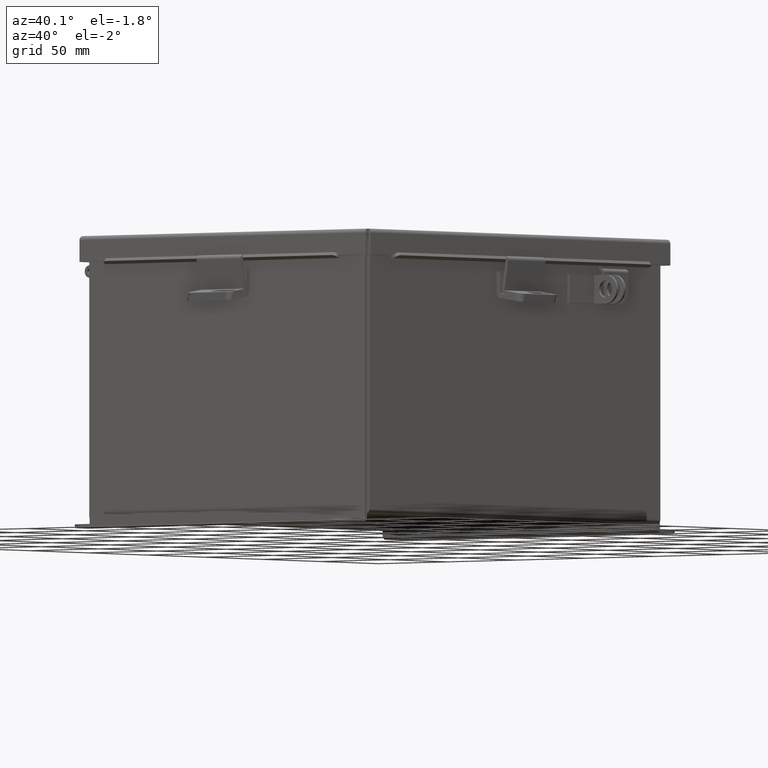
[diagram: clean part render]
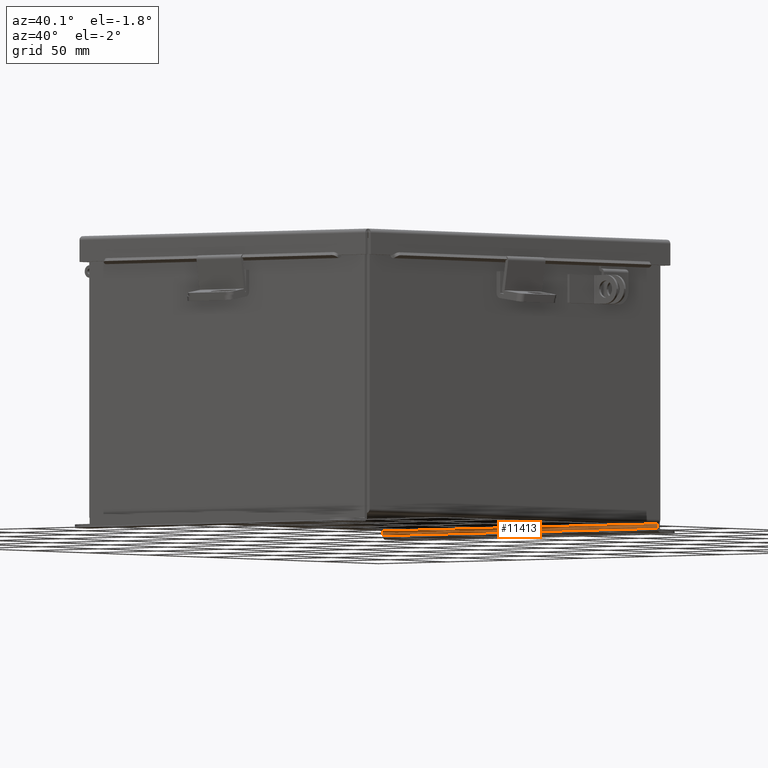
[diagram: same view with one face highlighted and labeled with its STEP entity id]
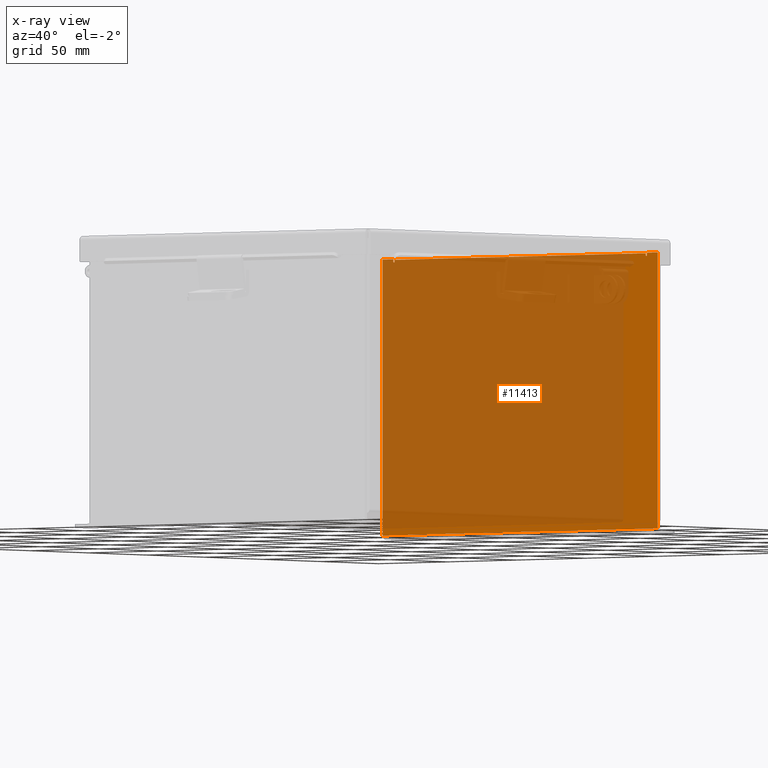
[diagram: x-ray of the same camera — body ghosted, the highlighted face saturated]
A machine part, auxiliary view. The second image highlights one B-rep face of the part: STEP entity #11413.
The next image is the same camera in x-ray: the body ghosted, the highlighted face saturated — about 86% of this face is hidden behind the body in this view.
In plain terms, the highlighted planar face has unit normal (0, -1, 0).
Its self-contained STEP definition (entity closure, byte-faithful):
#110 = LINE ( 'NONE', #7000, #9880 ) ;
#189 = EDGE_LOOP ( 'NONE', ( #14093, #1163, #10749, #2391, #8594, #6799, #3560, #2560, #8576, #13699, #16339, #2752 ) ) ;
#374 = CARTESIAN_POINT ( 'NONE',  ( -3.619649999999999600, -0.07470000000000015500, 2.874949999999999200 ) ) ;
#917 = CARTESIAN_POINT ( 'NONE',  ( 3.582299999999999600, -0.07470000000000015500, 2.874949999999999200 ) ) ;
#943 = LINE ( 'NONE', #1521, #3932 ) ;
#1163 = ORIENTED_EDGE ( 'NONE', *, *, #9681, .F. ) ;
#1172 = DIRECTION ( 'NONE',  ( 1.000000000000000000, 0.0000000000000000000, 0.0000000000000000000 ) ) ;
#1257 = VERTEX_POINT ( 'NONE', #9922 ) ;
#1333 = VECTOR ( 'NONE', #2147, 39.37007874015748100 ) ;
#1521 = CARTESIAN_POINT ( 'NONE',  ( -3.582299999999999600, -0.07469999999999907300, 2.874949999999999200 ) ) ;
#1917 = DIRECTION ( 'NONE',  ( 1.000000000000000000, 0.0000000000000000000, 0.0000000000000000000 ) ) ;
#2147 = DIRECTION ( 'NONE',  ( -0.0000000000000000000, -0.0000000000000000000, 1.000000000000000000 ) ) ;
#2391 = ORIENTED_EDGE ( 'NONE', *, *, #3533, .F. ) ;
#2560 = ORIENTED_EDGE ( 'NONE', *, *, #15768, .F. ) ;
#2678 = DIRECTION ( 'NONE',  ( 0.0000000000000000000, -1.000000000000000000, 0.0000000000000000000 ) ) ;
#2752 = ORIENTED_EDGE ( 'NONE', *, *, #11463, .F. ) ;
#2829 = LINE ( 'NONE', #15691, #12561 ) ;
#3034 = CARTESIAN_POINT ( 'NONE',  ( -3.925299999999999600, -0.07470000000000015500, 2.925299999999999600 ) ) ;
#3378 = EDGE_CURVE ( 'NONE', #15314, #7451, #10077, .T. ) ;
#3533 = EDGE_CURVE ( 'NONE', #14207, #12335, #4716, .T. ) ;
#3560 = ORIENTED_EDGE ( 'NONE', *, *, #3378, .F. ) ;
#3843 = CARTESIAN_POINT ( 'NONE',  ( -3.582299999999999600, -0.07470000000000015500, 2.912299999999999200 ) ) ;
#3932 = VECTOR ( 'NONE', #15465, 39.37007874015748100 ) ;
#4000 = VECTOR ( 'NONE', #12581, 39.37007874015748100 ) ;
#4245 = DIRECTION ( 'NONE',  ( 0.0000000000000000000, -1.000000000000000000, 0.0000000000000000000 ) ) ;
#4314 = VECTOR ( 'NONE', #1172, 39.37007874015748100 ) ;
#4688 = CARTESIAN_POINT ( 'NONE',  ( 3.925299999999999600, -0.07470000000000015500, 2.925299999999999600 ) ) ;
#4713 = LINE ( 'NONE', #10051, #4314 ) ;
#4716 = LINE ( 'NONE', #3034, #1333 ) ;
#4998 = CARTESIAN_POINT ( 'NONE',  ( 3.582299999999999600, -0.07469999999999907300, 2.912299999999999200 ) ) ;
#5047 = VERTEX_POINT ( 'NONE', #3843 ) ;
#5194 = PLANE ( 'NONE',  #15773 ) ;
#6334 = VECTOR ( 'NONE', #7125, 39.37007874015748100 ) ;
#6745 = CARTESIAN_POINT ( 'NONE',  ( 3.619649999999999600, -0.07469999999999907300, 2.874949999999999200 ) ) ;
#6799 = ORIENTED_EDGE ( 'NONE', *, *, #12473, .F. ) ;
#7000 = CARTESIAN_POINT ( 'NONE',  ( -3.925299999999999600, -0.07470000000000015500, 2.925299999999999600 ) ) ;
#7037 = EDGE_CURVE ( 'NONE', #14207, #16519, #2829, .T. ) ;
#7057 = VERTEX_POINT ( 'NONE', #12893 ) ;
#7058 = DIRECTION ( 'NONE',  ( 0.0000000000000000000, -1.000000000000000000, 0.0000000000000000000 ) ) ;
#7125 = DIRECTION ( 'NONE',  ( 0.0000000000000000000, 0.0000000000000000000, -1.000000000000000000 ) ) ;
#7214 = EDGE_CURVE ( 'NONE', #13310, #10336, #13962, .T. ) ;
#7405 = DIRECTION ( 'NONE',  ( 1.000000000000000000, 0.0000000000000000000, 0.0000000000000000000 ) ) ;
#7413 = LINE ( 'NONE', #4998, #4000 ) ;
#7423 = CARTESIAN_POINT ( 'NONE',  ( 3.582299999999999600, -0.07470000000000015500, 2.912299999999999200 ) ) ;
#7451 = VERTEX_POINT ( 'NONE', #4688 ) ;
#8574 = VERTEX_POINT ( 'NONE', #917 ) ;
#8576 = ORIENTED_EDGE ( 'NONE', *, *, #14602, .F. ) ;
#8594 = ORIENTED_EDGE ( 'NONE', *, *, #7037, .T. ) ;
#8712 = VECTOR ( 'NONE', #14340, 39.37007874015748100 ) ;
#8720 = CARTESIAN_POINT ( 'NONE',  ( -3.925299999999999600, -0.07470000000000015500, -3.099299999999999900 ) ) ;
#8724 = EDGE_CURVE ( 'NONE', #12999, #8574, #7413, .T. ) ;
#9092 = DIRECTION ( 'NONE',  ( 0.0000000000000000000, 1.186875369640613200E-014, -1.000000000000000000 ) ) ;
#9167 = CARTESIAN_POINT ( 'NONE',  ( -3.925299999999999600, -0.07470000000000015500, 2.925299999999999600 ) ) ;
#9681 = EDGE_CURVE ( 'NONE', #7057, #13310, #11515, .T. ) ;
#9795 = DIRECTION ( 'NONE',  ( 1.000000000000000000, -0.0000000000000000000, -0.0000000000000000000 ) ) ;
#9842 = AXIS2_PLACEMENT_3D ( 'NONE', #11836, #4245, #13141 ) ;
#9880 = VECTOR ( 'NONE', #1917, 39.37007874015748100 ) ;
#9922 = CARTESIAN_POINT ( 'NONE',  ( 3.619649999999999600, -0.07470000000000015500, 2.874949999999999200 ) ) ;
#9925 = CIRCLE ( 'NONE', #16234, 0.01867500000000003900 ) ;
#10051 = CARTESIAN_POINT ( 'NONE',  ( -3.582299999999999600, -0.07469999999999907300, 2.912299999999999200 ) ) ;
#10077 = LINE ( 'NONE', #9167, #13054 ) ;
#10283 = CARTESIAN_POINT ( 'NONE',  ( 0.0000000000000000000, -0.07470000000000015500, 0.0000000000000000000 ) ) ;
#10336 = VERTEX_POINT ( 'NONE', #10651 ) ;
#10651 = CARTESIAN_POINT ( 'NONE',  ( -3.582299999999999600, -0.07470000000000015500, 2.874949999999999200 ) ) ;
#10749 = ORIENTED_EDGE ( 'NONE', *, *, #16253, .F. ) ;
#11413 = ADVANCED_FACE ( 'NONE', ( #15262 ), #5194, .T. ) ;
#11463 = EDGE_CURVE ( 'NONE', #10336, #5047, #943, .T. ) ;
#11515 = LINE ( 'NONE', #14135, #14507 ) ;
#11559 = DIRECTION ( 'NONE',  ( 0.0000000000000000000, -0.0000000000000000000, -1.000000000000000000 ) ) ;
#11836 = CARTESIAN_POINT ( 'NONE',  ( -3.600974999999999600, -0.07469999999999907300, 2.874949999999999200 ) ) ;
#12335 = VERTEX_POINT ( 'NONE', #13216 ) ;
#12473 = EDGE_CURVE ( 'NONE', #7451, #16519, #16481, .T. ) ;
#12561 = VECTOR ( 'NONE', #9795, 39.37007874015748100 ) ;
#12581 = DIRECTION ( 'NONE',  ( 0.0000000000000000000, 0.0000000000000000000, -1.000000000000000000 ) ) ;
#12893 = CARTESIAN_POINT ( 'NONE',  ( -3.619649999999999600, -0.07470000000000015500, 2.925299999999999600 ) ) ;
#12999 = VERTEX_POINT ( 'NONE', #7423 ) ;
#13054 = VECTOR ( 'NONE', #7405, 39.37007874015748100 ) ;
#13078 = EDGE_CURVE ( 'NONE', #5047, #12999, #4713, .T. ) ;
#13141 = DIRECTION ( 'NONE',  ( 0.0000000000000000000, 0.0000000000000000000, -1.000000000000000000 ) ) ;
#13216 = CARTESIAN_POINT ( 'NONE',  ( -3.925299999999999600, -0.07470000000000015500, 2.925299999999999600 ) ) ;
#13310 = VERTEX_POINT ( 'NONE', #374 ) ;
#13699 = ORIENTED_EDGE ( 'NONE', *, *, #8724, .F. ) ;
#13962 = CIRCLE ( 'NONE', #9842, 0.01867500000000003900 ) ;
#14093 = ORIENTED_EDGE ( 'NONE', *, *, #7214, .F. ) ;
#14135 = CARTESIAN_POINT ( 'NONE',  ( -3.619649999999999600, -0.07469999999999907300, 2.925299999999999600 ) ) ;
#14207 = VERTEX_POINT ( 'NONE', #8720 ) ;
#14340 = DIRECTION ( 'NONE',  ( 2.170286390199978800E-014, -1.186875369640613200E-014, 1.000000000000000000 ) ) ;
#14507 = VECTOR ( 'NONE', #9092, 39.37007874015748100 ) ;
#14602 = EDGE_CURVE ( 'NONE', #8574, #1257, #9925, .T. ) ;
#14646 = CARTESIAN_POINT ( 'NONE',  ( 3.600974999999999600, -0.07469999999999907300, 2.874949999999999200 ) ) ;
#14766 = CARTESIAN_POINT ( 'NONE',  ( 3.925299999999999600, -0.07470000000000015500, 2.925299999999999600 ) ) ;
#14790 = CARTESIAN_POINT ( 'NONE',  ( 3.619650000000000900, -0.07470000000000015500, 2.925299999999999600 ) ) ;
#15049 = LINE ( 'NONE', #6745, #8712 ) ;
#15065 = CARTESIAN_POINT ( 'NONE',  ( 3.925299999999999600, -0.07470000000000015500, -3.099299999999999900 ) ) ;
#15262 = FACE_OUTER_BOUND ( 'NONE', #189, .T. ) ;
#15314 = VERTEX_POINT ( 'NONE', #14790 ) ;
#15465 = DIRECTION ( 'NONE',  ( 0.0000000000000000000, 0.0000000000000000000, 1.000000000000000000 ) ) ;
#15691 = CARTESIAN_POINT ( 'NONE',  ( -3.925299999999999600, -0.07470000000000015500, -3.099299999999999900 ) ) ;
#15768 = EDGE_CURVE ( 'NONE', #1257, #15314, #15049, .T. ) ;
#15773 = AXIS2_PLACEMENT_3D ( 'NONE', #10283, #2678, #11559 ) ;
#15951 = DIRECTION ( 'NONE',  ( 0.0000000000000000000, 0.0000000000000000000, -1.000000000000000000 ) ) ;
#16234 = AXIS2_PLACEMENT_3D ( 'NONE', #14646, #7058, #15951 ) ;
#16253 = EDGE_CURVE ( 'NONE', #12335, #7057, #110, .T. ) ;
#16339 = ORIENTED_EDGE ( 'NONE', *, *, #13078, .F. ) ;
#16481 = LINE ( 'NONE', #14766, #6334 ) ;
#16519 = VERTEX_POINT ( 'NONE', #15065 ) ;